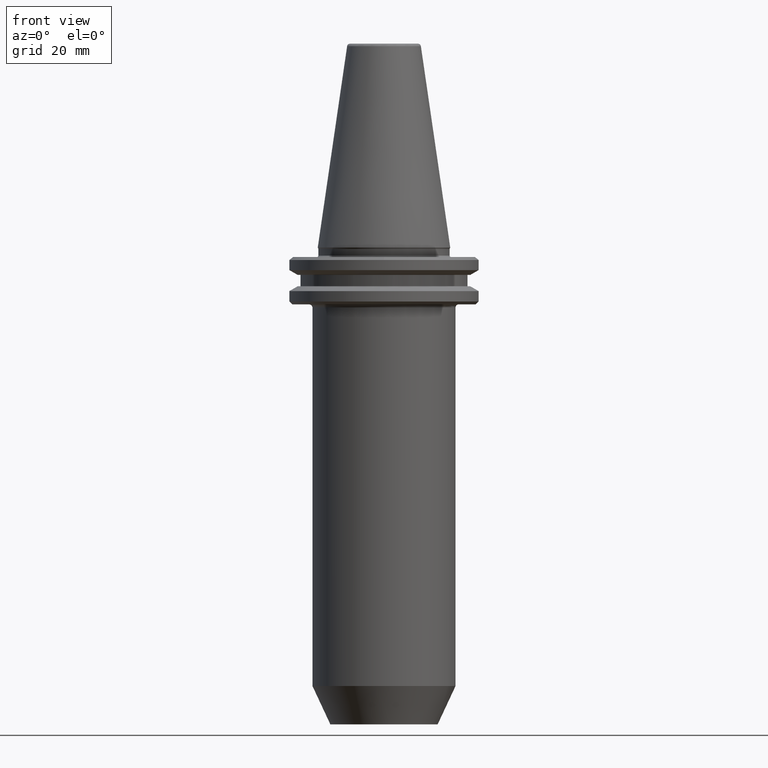
[diagram: clean part render]
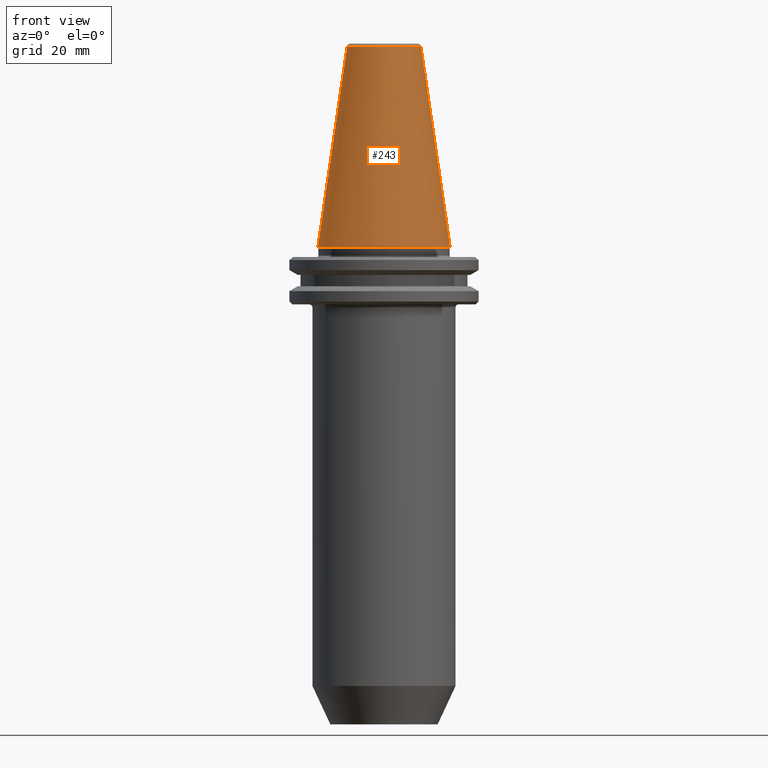
[diagram: same view with one face highlighted and labeled with its STEP entity id]
A machine part, front view. The second image highlights one B-rep face of the part: STEP entity #243.
In plain terms, the highlighted conical surface has half-angle 8.297 deg.
Its self-contained STEP definition (entity closure, byte-faithful):
#33 = VERTEX_POINT ( 'NONE', #111 ) ;
#53 = CARTESIAN_POINT ( 'NONE',  ( 22.22500000000000100, 2.721777511104992800E-015, 0.0000000000000000000 ) ) ;
#54 = DIRECTION ( 'NONE',  ( 0.0000000000000000000, 0.0000000000000000000, -1.000000000000000000 ) ) ;
#59 = ORIENTED_EDGE ( 'NONE', *, *, #408, .F. ) ;
#67 = EDGE_CURVE ( 'NONE', #33, #1469, #1464, .T. ) ;
#91 = DIRECTION ( 'NONE',  ( 0.1443082272673070500, 1.767266086135363700E-017, -0.9895327864921743500 ) ) ;
#94 = LINE ( 'NONE', #1109, #1422 ) ;
#101 = AXIS2_PLACEMENT_3D ( 'NONE', #338, #906, #450 ) ;
#111 = CARTESIAN_POINT ( 'NONE',  ( 12.37469537611110800, 2.118620309691397300E-015, 67.54430822726729400 ) ) ;
#163 = AXIS2_PLACEMENT_3D ( 'NONE', #535, #54, #566 ) ;
#182 = EDGE_CURVE ( 'NONE', #33, #271, #1511, .T. ) ;
#186 = CARTESIAN_POINT ( 'NONE',  ( 0.0000000000000000000, 0.0000000000000000000, 0.0000000000000000000 ) ) ;
#243 = ADVANCED_FACE ( 'NONE', ( #809 ), #606, .T. ) ;
#262 = EDGE_LOOP ( 'NONE', ( #1274, #808, #1392, #59 ) ) ;
#271 = VERTEX_POINT ( 'NONE', #924 ) ;
#338 = CARTESIAN_POINT ( 'NONE',  ( 0.0000000000000000000, 0.0000000000000000000, 67.54430822726729400 ) ) ;
#349 = CIRCLE ( 'NONE', #1234, 22.22500000000000500 ) ;
#377 = CARTESIAN_POINT ( 'NONE',  ( 22.22500000000000100, 2.721777511104992800E-015, 0.0000000000000000000 ) ) ;
#408 = EDGE_CURVE ( 'NONE', #1469, #442, #349, .T. ) ;
#442 = VERTEX_POINT ( 'NONE', #1074 ) ;
#450 = DIRECTION ( 'NONE',  ( -1.000000000000000000, 0.0000000000000000000, 0.0000000000000000000 ) ) ;
#535 = CARTESIAN_POINT ( 'NONE',  ( 0.0000000000000000000, 0.0000000000000000000, 0.0000000000000000000 ) ) ;
#566 = DIRECTION ( 'NONE',  ( -1.000000000000000000, 0.0000000000000000000, 0.0000000000000000000 ) ) ;
#606 = CONICAL_SURFACE ( 'NONE', #163, 22.22500000000000100, 0.1448138465474190500 ) ;
#785 = VECTOR ( 'NONE', #91, 1000.000000000000000 ) ;
#798 = EDGE_CURVE ( 'NONE', #271, #442, #94, .T. ) ;
#808 = ORIENTED_EDGE ( 'NONE', *, *, #182, .T. ) ;
#809 = FACE_OUTER_BOUND ( 'NONE', #262, .T. ) ;
#827 = DIRECTION ( 'NONE',  ( -0.0000000000000000000, -0.0000000000000000000, -1.000000000000000000 ) ) ;
#906 = DIRECTION ( 'NONE',  ( 0.0000000000000000000, 0.0000000000000000000, -1.000000000000000000 ) ) ;
#924 = CARTESIAN_POINT ( 'NONE',  ( -12.37469537611110800, 0.0000000000000000000, 67.54430822726729400 ) ) ;
#1074 = CARTESIAN_POINT ( 'NONE',  ( -22.22500000000000100, 0.0000000000000000000, 0.0000000000000000000 ) ) ;
#1109 = CARTESIAN_POINT ( 'NONE',  ( -22.22500000000000100, 0.0000000000000000000, 0.0000000000000000000 ) ) ;
#1111 = DIRECTION ( 'NONE',  ( -0.1443082272673070500, 0.0000000000000000000, -0.9895327864921743500 ) ) ;
#1234 = AXIS2_PLACEMENT_3D ( 'NONE', #186, #827, #1557 ) ;
#1274 = ORIENTED_EDGE ( 'NONE', *, *, #67, .F. ) ;
#1392 = ORIENTED_EDGE ( 'NONE', *, *, #798, .T. ) ;
#1422 = VECTOR ( 'NONE', #1111, 1000.000000000000000 ) ;
#1464 = LINE ( 'NONE', #53, #785 ) ;
#1469 = VERTEX_POINT ( 'NONE', #377 ) ;
#1511 = CIRCLE ( 'NONE', #101, 12.37469537611110800 ) ;
#1557 = DIRECTION ( 'NONE',  ( 1.000000000000000000, 0.0000000000000000000, 9.822541477422708000E-017 ) ) ;